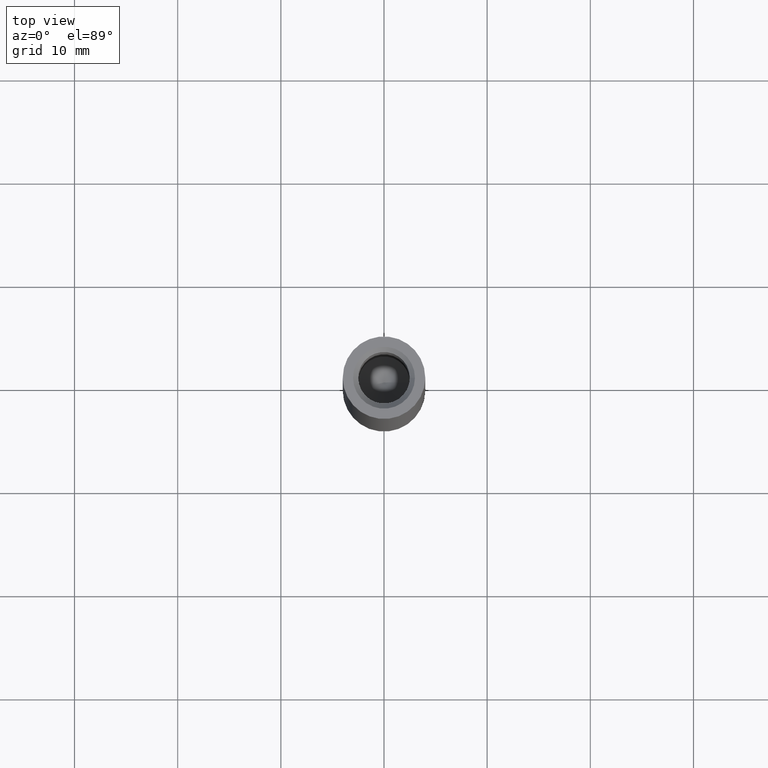
[diagram: clean part render]
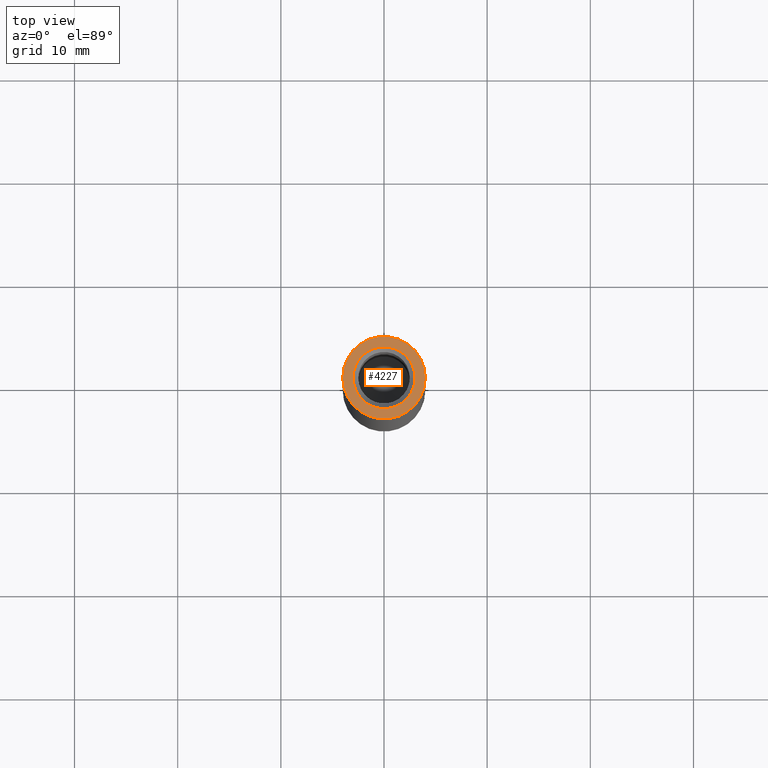
[diagram: same view with one face highlighted and labeled with its STEP entity id]
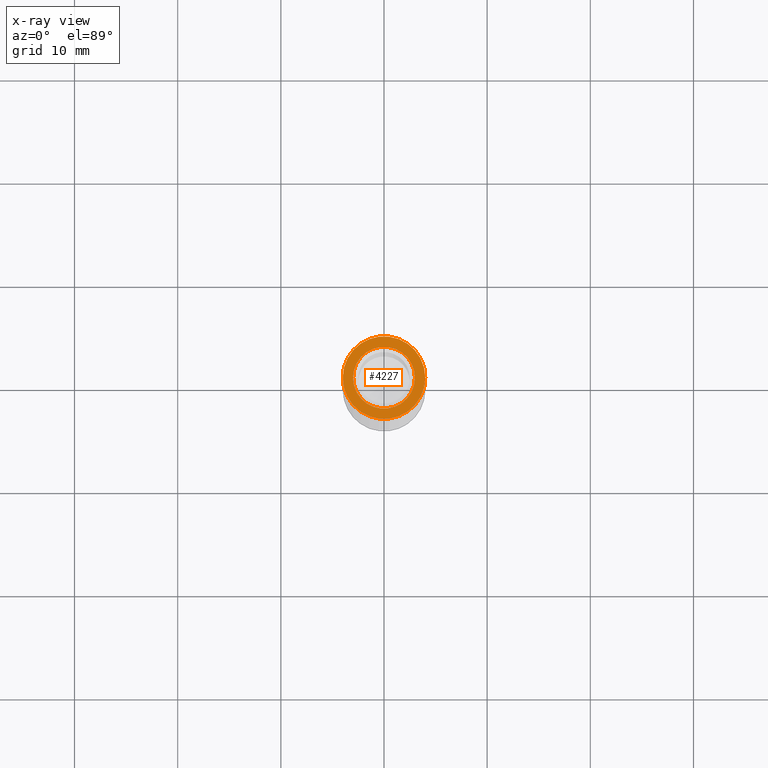
[diagram: x-ray of the same camera — body ghosted, the highlighted face saturated]
A machine part, top view. The second image highlights one B-rep face of the part: STEP entity #4227.
The next image is the same camera in x-ray: the body ghosted, the highlighted face saturated — about 0% of this face is hidden behind the body in this view.
In plain terms, the highlighted planar face has unit normal (0, 0, 1).
Its self-contained STEP definition (entity closure, byte-faithful):
#684 = CARTESIAN_POINT ( 'NONE',  ( 2.999999999999995559, 0.000000000000000000, 35.00000000000000000 ) ) ;
#824 = FACE_BOUND ( 'NONE', #10108, .T. ) ;
#1236 = PLANE ( 'NONE',  #7023 ) ;
#1321 = DIRECTION ( 'NONE',  ( 1.000000000000000000, 0.000000000000000000, 0.000000000000000000 ) ) ;
#1561 = ORIENTED_EDGE ( 'NONE', *, *, #6022, .T. ) ;
#2769 = CARTESIAN_POINT ( 'NONE',  ( 4.000000000000000000, 0.000000000000000000, 35.00000000000000000 ) ) ;
#3392 = FACE_OUTER_BOUND ( 'NONE', #10559, .T. ) ;
#4227 = ADVANCED_FACE ( 'NONE', ( #824, #3392 ), #1236, .T. ) ;
#5056 = CARTESIAN_POINT ( 'NONE',  ( 0.000000000000000000, 0.000000000000000000, 35.00000000000000000 ) ) ;
#5115 = EDGE_CURVE ( 'NONE', #5740, #5740, #8478, .T. ) ;
#5740 = VERTEX_POINT ( 'NONE', #2769 ) ;
#6022 = EDGE_CURVE ( 'NONE', #9661, #9661, #6604, .T. ) ;
#6329 = ORIENTED_EDGE ( 'NONE', *, *, #5115, .T. ) ;
#6604 = CIRCLE ( 'NONE', #8391, 2.999999999999995559 ) ;
#6698 = DIRECTION ( 'NONE',  ( -0.000000000000000000, -0.000000000000000000, -1.000000000000000000 ) ) ;
#7023 = AXIS2_PLACEMENT_3D ( 'NONE', #10840, #13154, #10788 ) ;
#8391 = AXIS2_PLACEMENT_3D ( 'NONE', #8801, #6698, #1321 ) ;
#8478 = CIRCLE ( 'NONE', #9939, 4.000000000000000000 ) ;
#8801 = CARTESIAN_POINT ( 'NONE',  ( 0.000000000000000000, 0.000000000000000000, 35.00000000000000000 ) ) ;
#9661 = VERTEX_POINT ( 'NONE', #684 ) ;
#9939 = AXIS2_PLACEMENT_3D ( 'NONE', #5056, #10429, #12815 ) ;
#10108 = EDGE_LOOP ( 'NONE', ( #1561 ) ) ;
#10429 = DIRECTION ( 'NONE',  ( 0.000000000000000000, 0.000000000000000000, 1.000000000000000000 ) ) ;
#10559 = EDGE_LOOP ( 'NONE', ( #6329 ) ) ;
#10788 = DIRECTION ( 'NONE',  ( 1.000000000000000000, 0.000000000000000000, -0.000000000000000000 ) ) ;
#10840 = CARTESIAN_POINT ( 'NONE',  ( 0.000000000000000000, 0.000000000000000000, 35.00000000000000000 ) ) ;
#12815 = DIRECTION ( 'NONE',  ( 1.000000000000000000, 0.000000000000000000, 0.000000000000000000 ) ) ;
#13154 = DIRECTION ( 'NONE',  ( 0.000000000000000000, 0.000000000000000000, 1.000000000000000000 ) ) ;